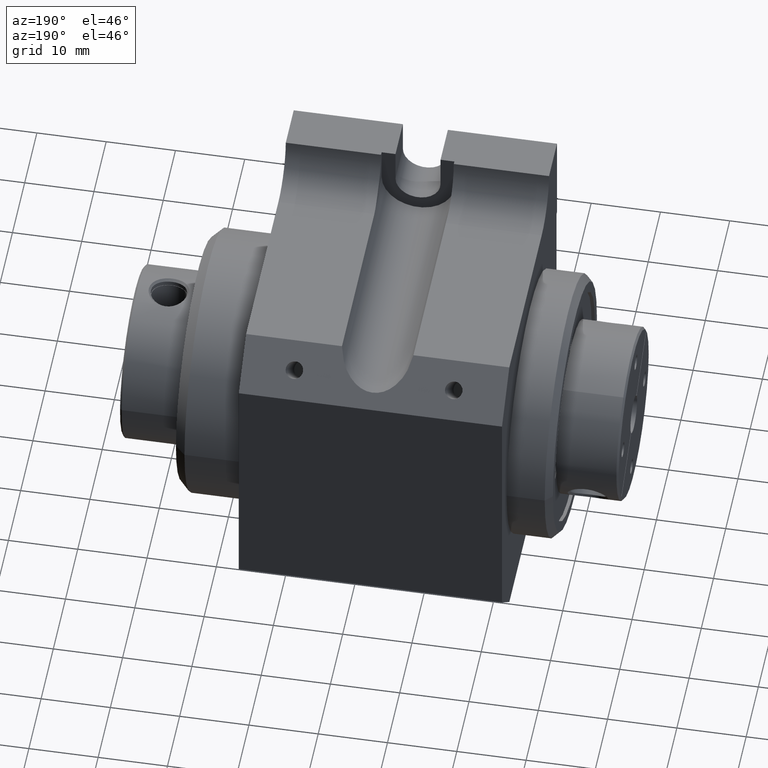
[diagram: clean part render]
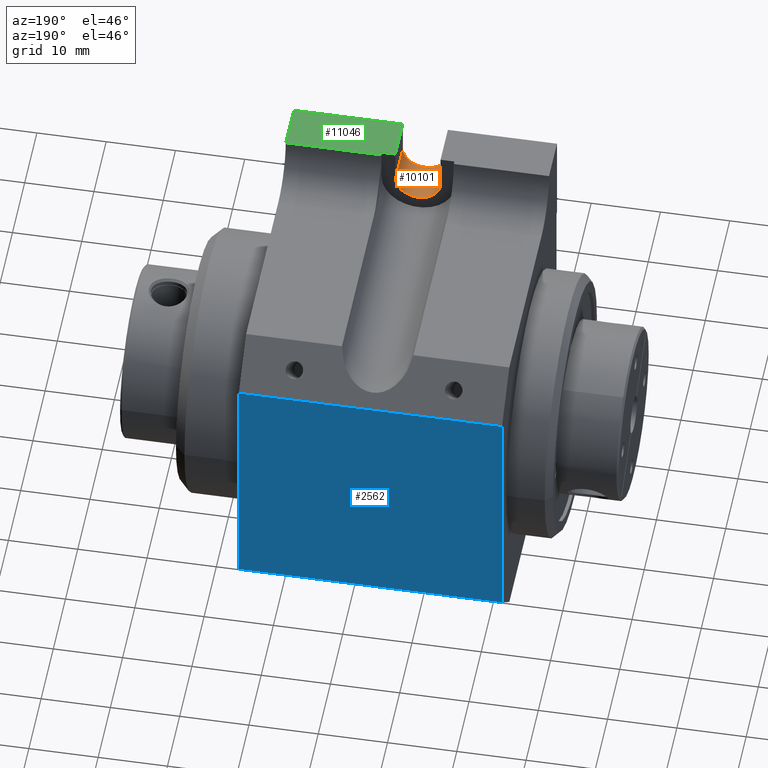
[diagram: same view with three faces highlighted in distinct colors, each labeled with its STEP entity id]
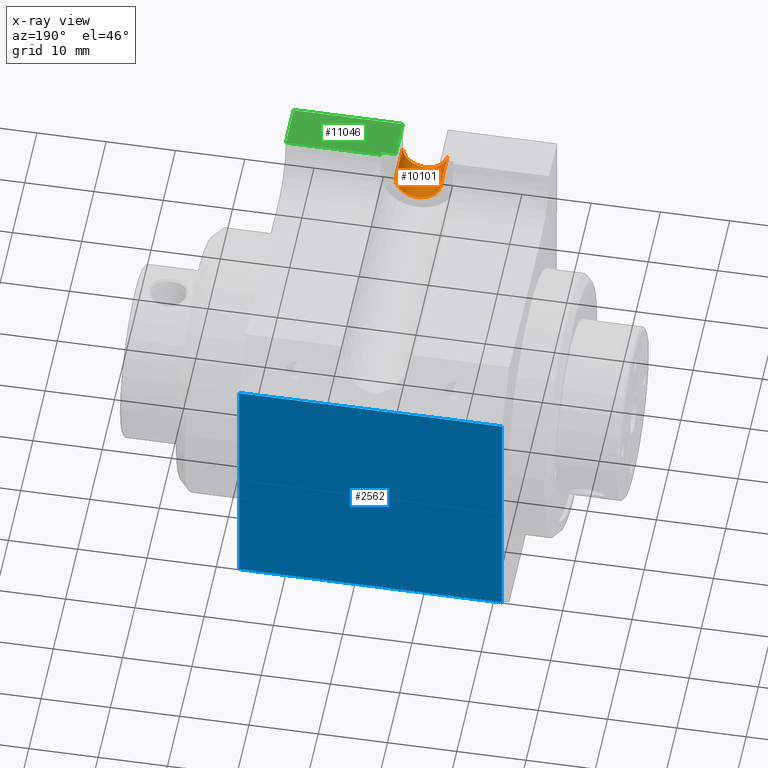
[diagram: x-ray of the same camera — body ghosted, the three highlighted faces saturated]
A machine part, auxiliary view with three faces highlighted in distinct colors.
The next image is the same camera in x-ray (body ghosted, the three faces saturated) — at least one of them is partly hidden behind the body in this view.
Their STEP definitions:

[orange] entity #10101 — the highlighted cylindrical surface (edge-blend (fillet) strip) has radius 3.25 mm, axis along (0, 1, 0).
#11 = CARTESIAN_POINT ( 'NONE',  ( 25.50002206793000070, -2.189642762347000282, 28.52775237512000217 ) ) ;
#814 = EDGE_CURVE ( 'NONE', #4903, #10658, #4547, .T. ) ;
#1241 = CYLINDRICAL_SURFACE ( 'NONE', #2064, 3.249999999999999556 ) ;
#1503 = DIRECTION ( 'NONE',  ( 1.000000000000000000, 0.000000000000000000, 0.000000000000000000 ) ) ;
#1748 = CARTESIAN_POINT ( 'NONE',  ( 25.50002206793000070, 3.810357237653000162, 28.52775237512000217 ) ) ;
#2064 = AXIS2_PLACEMENT_3D ( 'NONE', #6340, #5357, #7335 ) ;
#2661 = CARTESIAN_POINT ( 'NONE',  ( 28.75002206792999715, 3.810357237653000162, 28.52775237512000217 ) ) ;
#2952 = EDGE_CURVE ( 'NONE', #10658, #11485, #6862, .T. ) ;
#3455 = AXIS2_PLACEMENT_3D ( 'NONE', #11, #6560, #10544 ) ;
#3473 = EDGE_CURVE ( 'NONE', #4903, #7765, #7624, .T. ) ;
#3652 = ORIENTED_EDGE ( 'NONE', *, *, #9419, .F. ) ;
#4547 = CIRCLE ( 'NONE', #5949, 3.249999999999999556 ) ;
#4877 = DIRECTION ( 'NONE',  ( 0.000000000000000000, -1.000000000000000000, 0.000000000000000000 ) ) ;
#4903 = VERTEX_POINT ( 'NONE', #2661 ) ;
#5357 = DIRECTION ( 'NONE',  ( 0.000000000000000000, 1.000000000000000000, 0.000000000000000000 ) ) ;
#5600 = CARTESIAN_POINT ( 'NONE',  ( 28.75002206792999715, 3.810357237653000162, 28.52775237512000217 ) ) ;
#5949 = AXIS2_PLACEMENT_3D ( 'NONE', #1748, #12327, #1503 ) ;
#6340 = CARTESIAN_POINT ( 'NONE',  ( 25.50002206793000070, 42.81035723765000256, 28.52775237512000217 ) ) ;
#6560 = DIRECTION ( 'NONE',  ( 0.000000000000000000, 1.000000000000000000, 0.000000000000000000 ) ) ;
#6862 = LINE ( 'NONE', #8896, #7188 ) ;
#7187 = ORIENTED_EDGE ( 'NONE', *, *, #2952, .T. ) ;
#7188 = VECTOR ( 'NONE', #10881, 1000.000000000000000 ) ;
#7335 = DIRECTION ( 'NONE',  ( -1.000000000000000000, 0.000000000000000000, 0.000000000000000000 ) ) ;
#7624 = LINE ( 'NONE', #5600, #11651 ) ;
#7765 = VERTEX_POINT ( 'NONE', #11100 ) ;
#8119 = EDGE_LOOP ( 'NONE', ( #7187, #3652, #12305, #12498 ) ) ;
#8430 = CARTESIAN_POINT ( 'NONE',  ( 22.25002206793000070, -2.189642762347000282, 28.52775237512000217 ) ) ;
#8767 = CIRCLE ( 'NONE', #3455, 3.249999999999999556 ) ;
#8896 = CARTESIAN_POINT ( 'NONE',  ( 22.25002206793000070, 3.810357237653000162, 28.52775237512000217 ) ) ;
#9419 = EDGE_CURVE ( 'NONE', #7765, #11485, #8767, .T. ) ;
#9669 = FACE_OUTER_BOUND ( 'NONE', #8119, .T. ) ;
#10101 = ADVANCED_FACE ( 'NONE', ( #9669 ), #1241, .F. ) ;
#10166 = CARTESIAN_POINT ( 'NONE',  ( 22.25002206793000070, 3.810357237653000162, 28.52775237512000217 ) ) ;
#10544 = DIRECTION ( 'NONE',  ( 1.000000000000000000, 0.000000000000000000, 0.000000000000000000 ) ) ;
#10658 = VERTEX_POINT ( 'NONE', #10166 ) ;
#10881 = DIRECTION ( 'NONE',  ( 0.000000000000000000, -1.000000000000000000, 0.000000000000000000 ) ) ;
#11100 = CARTESIAN_POINT ( 'NONE',  ( 28.75002206792999715, -2.189642762347000282, 28.52775237512000217 ) ) ;
#11485 = VERTEX_POINT ( 'NONE', #8430 ) ;
#11651 = VECTOR ( 'NONE', #4877, 1000.000000000000000 ) ;
#12305 = ORIENTED_EDGE ( 'NONE', *, *, #3473, .F. ) ;
#12327 = DIRECTION ( 'NONE',  ( 0.000000000000000000, 1.000000000000000000, 0.000000000000000000 ) ) ;
#12498 = ORIENTED_EDGE ( 'NONE', *, *, #814, .T. ) ;

[blue] entity #2562 — the highlighted planar face has unit normal (-0, 1, 0).
#64 = VECTOR ( 'NONE', #4596, 1000.000000000000000 ) ;
#214 = VECTOR ( 'NONE', #8886, 1000.000000000000000 ) ;
#985 = CARTESIAN_POINT ( 'NONE',  ( 6.500022067927000435, 42.81035723765000256, -14.47224762487999961 ) ) ;
#1080 = CARTESIAN_POINT ( 'NONE',  ( 44.50002206793000425, 42.81035723765000256, 21.52775237512000217 ) ) ;
#1121 = VECTOR ( 'NONE', #6611, 1000.000000000000000 ) ;
#1697 = EDGE_CURVE ( 'NONE', #1929, #4304, #9941, .T. ) ;
#1929 = VERTEX_POINT ( 'NONE', #9112 ) ;
#2562 = ADVANCED_FACE ( 'NONE', ( #6745 ), #3818, .T. ) ;
#2874 = VERTEX_POINT ( 'NONE', #11020 ) ;
#2927 = CARTESIAN_POINT ( 'NONE',  ( 6.500022067927000435, 42.81035723765000256, -20.47224762488000138 ) ) ;
#3818 = PLANE ( 'NONE',  #10887 ) ;
#4259 = EDGE_CURVE ( 'NONE', #1929, #6737, #8488, .T. ) ;
#4304 = VERTEX_POINT ( 'NONE', #7302 ) ;
#4347 = LINE ( 'NONE', #1080, #8235 ) ;
#4390 = EDGE_CURVE ( 'NONE', #4304, #2874, #4347, .T. ) ;
#4596 = DIRECTION ( 'NONE',  ( -1.000000000000000000, 0.000000000000000000, 0.000000000000000000 ) ) ;
#4860 = ORIENTED_EDGE ( 'NONE', *, *, #4390, .F. ) ;
#5078 = DIRECTION ( 'NONE',  ( -0.000000000000000000, 1.000000000000000000, 0.000000000000000000 ) ) ;
#5910 = DIRECTION ( 'NONE',  ( -1.000000000000000000, 0.000000000000000000, 0.000000000000000000 ) ) ;
#6091 = ORIENTED_EDGE ( 'NONE', *, *, #12672, .T. ) ;
#6346 = ORIENTED_EDGE ( 'NONE', *, *, #4259, .T. ) ;
#6472 = CARTESIAN_POINT ( 'NONE',  ( 44.50002206793000425, 42.81035723765000256, -14.47224762487999961 ) ) ;
#6611 = DIRECTION ( 'NONE',  ( 0.000000000000000000, 0.000000000000000000, 1.000000000000000000 ) ) ;
#6616 = ORIENTED_EDGE ( 'NONE', *, *, #1697, .F. ) ;
#6737 = VERTEX_POINT ( 'NONE', #7744 ) ;
#6745 = FACE_OUTER_BOUND ( 'NONE', #11455, .T. ) ;
#7302 = CARTESIAN_POINT ( 'NONE',  ( 44.50002206793000425, 42.81035723765000256, 21.52775237512000217 ) ) ;
#7744 = CARTESIAN_POINT ( 'NONE',  ( 6.500022067927000435, 42.81035723765000256, -14.47224762487999961 ) ) ;
#8130 = DIRECTION ( 'NONE',  ( 1.000000000000000000, 0.000000000000000000, 0.000000000000000000 ) ) ;
#8182 = LINE ( 'NONE', #985, #214 ) ;
#8235 = VECTOR ( 'NONE', #5910, 1000.000000000000000 ) ;
#8488 = LINE ( 'NONE', #6472, #64 ) ;
#8886 = DIRECTION ( 'NONE',  ( 0.000000000000000000, 0.000000000000000000, 1.000000000000000000 ) ) ;
#9112 = CARTESIAN_POINT ( 'NONE',  ( 44.50002206793000425, 42.81035723765000256, -14.47224762487999961 ) ) ;
#9614 = CARTESIAN_POINT ( 'NONE',  ( 44.50002206793000425, 42.81035723765000256, -14.47224762487999961 ) ) ;
#9941 = LINE ( 'NONE', #9614, #1121 ) ;
#10887 = AXIS2_PLACEMENT_3D ( 'NONE', #2927, #5078, #8130 ) ;
#11020 = CARTESIAN_POINT ( 'NONE',  ( 6.500022067927000435, 42.81035723765000256, 21.52775237512000217 ) ) ;
#11455 = EDGE_LOOP ( 'NONE', ( #6091, #4860, #6616, #6346 ) ) ;
#12672 = EDGE_CURVE ( 'NONE', #6737, #2874, #8182, .T. ) ;

[green] entity #11046 — the highlighted planar face has unit normal (0, 0, 1).
#349 = CARTESIAN_POINT ( 'NONE',  ( 28.75002206792999715, 3.810357237653000162, 33.52775237511999507 ) ) ;
#428 = CARTESIAN_POINT ( 'NONE',  ( 44.50002206793000425, -2.189642762347000282, 33.52775237511999507 ) ) ;
#1682 = CARTESIAN_POINT ( 'NONE',  ( 28.75002206792999715, 3.810357237653000162, 33.52775237511999507 ) ) ;
#1842 = DIRECTION ( 'NONE',  ( 0.000000000000000000, 1.000000000000000000, 0.000000000000000000 ) ) ;
#2219 = LINE ( 'NONE', #4351, #10854 ) ;
#2385 = CARTESIAN_POINT ( 'NONE',  ( 28.75002206792999715, -2.189642762347000282, 33.52775237511999507 ) ) ;
#3033 = CARTESIAN_POINT ( 'NONE',  ( 30.75002206792999715, 4.310357237652999274, 33.52775237511999507 ) ) ;
#3438 = VERTEX_POINT ( 'NONE', #5305 ) ;
#3620 = VECTOR ( 'NONE', #5689, 1000.000000000000000 ) ;
#3746 = VECTOR ( 'NONE', #5040, 1000.000000000000000 ) ;
#4028 = EDGE_CURVE ( 'NONE', #5514, #8724, #7826, .T. ) ;
#4093 = PLANE ( 'NONE',  #6606 ) ;
#4184 = DIRECTION ( 'NONE',  ( 0.000000000000000000, -1.000000000000000000, 0.000000000000000000 ) ) ;
#4351 = CARTESIAN_POINT ( 'NONE',  ( 44.50002206793000425, 4.310357237652999274, 33.52775237511999507 ) ) ;
#5040 = DIRECTION ( 'NONE',  ( 0.000000000000000000, -1.000000000000000000, 0.000000000000000000 ) ) ;
#5041 = ORIENTED_EDGE ( 'NONE', *, *, #8651, .T. ) ;
#5063 = ORIENTED_EDGE ( 'NONE', *, *, #10969, .T. ) ;
#5257 = DIRECTION ( 'NONE',  ( -1.000000000000000000, 0.000000000000000000, 0.000000000000000000 ) ) ;
#5305 = CARTESIAN_POINT ( 'NONE',  ( 30.75002206792999715, 3.810357237653000162, 33.52775237511999507 ) ) ;
#5423 = DIRECTION ( 'NONE',  ( 0.000000000000000000, 0.000000000000000000, 1.000000000000000000 ) ) ;
#5514 = VERTEX_POINT ( 'NONE', #6093 ) ;
#5689 = DIRECTION ( 'NONE',  ( -1.000000000000000000, 0.000000000000000000, 0.000000000000000000 ) ) ;
#6093 = CARTESIAN_POINT ( 'NONE',  ( 44.50002206793000425, -2.189642762347000282, 33.52775237511999507 ) ) ;
#6211 = DIRECTION ( 'NONE',  ( 1.000000000000000000, 0.000000000000000000, 0.000000000000000000 ) ) ;
#6212 = ORIENTED_EDGE ( 'NONE', *, *, #7879, .F. ) ;
#6345 = ORIENTED_EDGE ( 'NONE', *, *, #4028, .T. ) ;
#6406 = DIRECTION ( 'NONE',  ( 1.000000000000000000, 0.000000000000000000, 0.000000000000000000 ) ) ;
#6416 = FACE_OUTER_BOUND ( 'NONE', #6740, .T. ) ;
#6606 = AXIS2_PLACEMENT_3D ( 'NONE', #428, #5423, #6406 ) ;
#6740 = EDGE_LOOP ( 'NONE', ( #8472, #7978, #6345, #5063, #5041, #6212 ) ) ;
#7333 = EDGE_CURVE ( 'NONE', #9844, #8451, #7432, .T. ) ;
#7432 = LINE ( 'NONE', #349, #11889 ) ;
#7826 = LINE ( 'NONE', #12660, #8164 ) ;
#7879 = EDGE_CURVE ( 'NONE', #9844, #3438, #12005, .T. ) ;
#7954 = CARTESIAN_POINT ( 'NONE',  ( 28.75002206792999715, 3.810357237653000162, 33.52775237511999507 ) ) ;
#7978 = ORIENTED_EDGE ( 'NONE', *, *, #12390, .F. ) ;
#8164 = VECTOR ( 'NONE', #1842, 1000.000000000000000 ) ;
#8354 = CARTESIAN_POINT ( 'NONE',  ( 44.50002206793000425, 4.310357237652999274, 33.52775237511999507 ) ) ;
#8451 = VERTEX_POINT ( 'NONE', #2385 ) ;
#8472 = ORIENTED_EDGE ( 'NONE', *, *, #7333, .T. ) ;
#8651 = EDGE_CURVE ( 'NONE', #10170, #3438, #12064, .T. ) ;
#8662 = CARTESIAN_POINT ( 'NONE',  ( 30.75002206792999715, 4.310357237652999274, 33.52775237511999507 ) ) ;
#8724 = VERTEX_POINT ( 'NONE', #8354 ) ;
#9844 = VERTEX_POINT ( 'NONE', #1682 ) ;
#10170 = VERTEX_POINT ( 'NONE', #3033 ) ;
#10854 = VECTOR ( 'NONE', #5257, 1000.000000000000000 ) ;
#10969 = EDGE_CURVE ( 'NONE', #8724, #10170, #2219, .T. ) ;
#11046 = ADVANCED_FACE ( 'NONE', ( #6416 ), #4093, .T. ) ;
#11889 = VECTOR ( 'NONE', #4184, 1000.000000000000000 ) ;
#11974 = LINE ( 'NONE', #12568, #3620 ) ;
#12005 = LINE ( 'NONE', #7954, #12044 ) ;
#12044 = VECTOR ( 'NONE', #6211, 1000.000000000000000 ) ;
#12064 = LINE ( 'NONE', #8662, #3746 ) ;
#12390 = EDGE_CURVE ( 'NONE', #5514, #8451, #11974, .T. ) ;
#12568 = CARTESIAN_POINT ( 'NONE',  ( 44.50002206793000425, -2.189642762347000282, 33.52775237511999507 ) ) ;
#12660 = CARTESIAN_POINT ( 'NONE',  ( 44.50002206793000425, -2.189642762347000282, 33.52775237511999507 ) ) ;